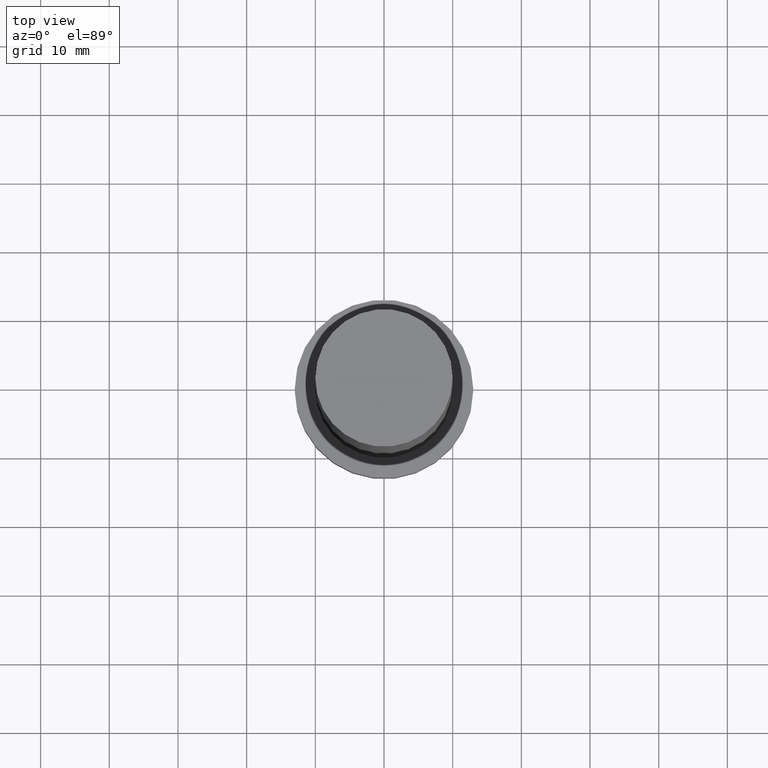
[diagram: clean part render]
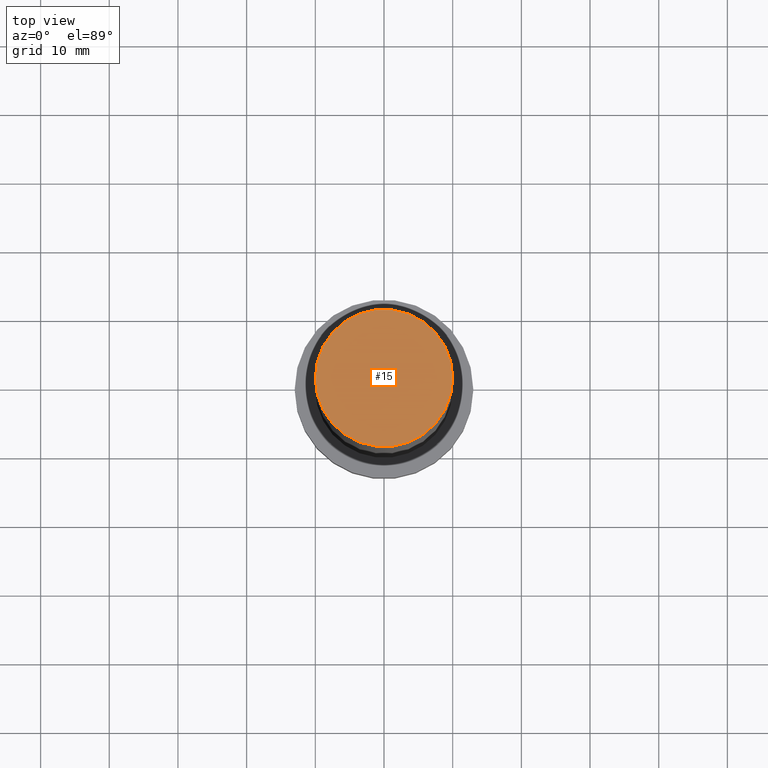
[diagram: same view with one face highlighted and labeled with its STEP entity id]
A machine part, top view. The second image highlights one B-rep face of the part: STEP entity #15.
In plain terms, the highlighted planar face has unit normal (0, 0, 1).
Its self-contained STEP definition (entity closure, byte-faithful):
#1 = DIRECTION ( 'NONE',  ( 1.000000000000000000, 0.000000000000000000, -0.000000000000000000 ) ) ;
#15 = ADVANCED_FACE ( 'NONE', ( #103 ), #128, .T. ) ;
#24 = EDGE_LOOP ( 'NONE', ( #195, #34 ) ) ;
#27 = EDGE_CURVE ( 'NONE', #132, #111, #253, .T. ) ;
#30 = DIRECTION ( 'NONE',  ( 0.000000000000000000, 0.000000000000000000, 1.000000000000000000 ) ) ;
#32 = CARTESIAN_POINT ( 'NONE',  ( 10.00000000000000178, 1.224646799147353454E-15, 100.0000000000000000 ) ) ;
#34 = ORIENTED_EDGE ( 'NONE', *, *, #154, .T. ) ;
#96 = AXIS2_PLACEMENT_3D ( 'NONE', #237, #144, #174 ) ;
#103 = FACE_OUTER_BOUND ( 'NONE', #24, .T. ) ;
#106 = AXIS2_PLACEMENT_3D ( 'NONE', #152, #30, #137 ) ;
#111 = VERTEX_POINT ( 'NONE', #32 ) ;
#116 = AXIS2_PLACEMENT_3D ( 'NONE', #198, #179, #1 ) ;
#128 = PLANE ( 'NONE',  #116 ) ;
#132 = VERTEX_POINT ( 'NONE', #208 ) ;
#137 = DIRECTION ( 'NONE',  ( 1.000000000000000000, 0.000000000000000000, 0.000000000000000000 ) ) ;
#143 = CIRCLE ( 'NONE', #106, 10.00000000000000178 ) ;
#144 = DIRECTION ( 'NONE',  ( 0.000000000000000000, 0.000000000000000000, 1.000000000000000000 ) ) ;
#152 = CARTESIAN_POINT ( 'NONE',  ( 0.000000000000000000, 0.000000000000000000, 100.0000000000000000 ) ) ;
#154 = EDGE_CURVE ( 'NONE', #111, #132, #143, .T. ) ;
#174 = DIRECTION ( 'NONE',  ( 1.000000000000000000, 0.000000000000000000, 0.000000000000000000 ) ) ;
#179 = DIRECTION ( 'NONE',  ( 0.000000000000000000, 0.000000000000000000, 1.000000000000000000 ) ) ;
#195 = ORIENTED_EDGE ( 'NONE', *, *, #27, .T. ) ;
#198 = CARTESIAN_POINT ( 'NONE',  ( 0.000000000000000000, 0.000000000000000000, 100.0000000000000000 ) ) ;
#208 = CARTESIAN_POINT ( 'NONE',  ( -10.00000000000000178, 0.000000000000000000, 100.0000000000000000 ) ) ;
#237 = CARTESIAN_POINT ( 'NONE',  ( 0.000000000000000000, 0.000000000000000000, 100.0000000000000000 ) ) ;
#253 = CIRCLE ( 'NONE', #96, 10.00000000000000178 ) ;